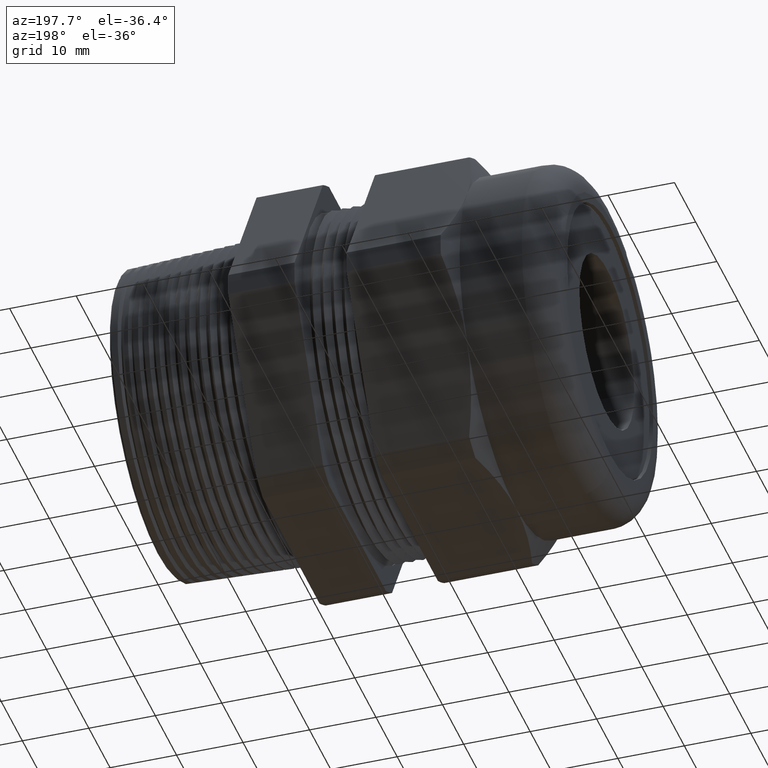
[diagram: clean part render]
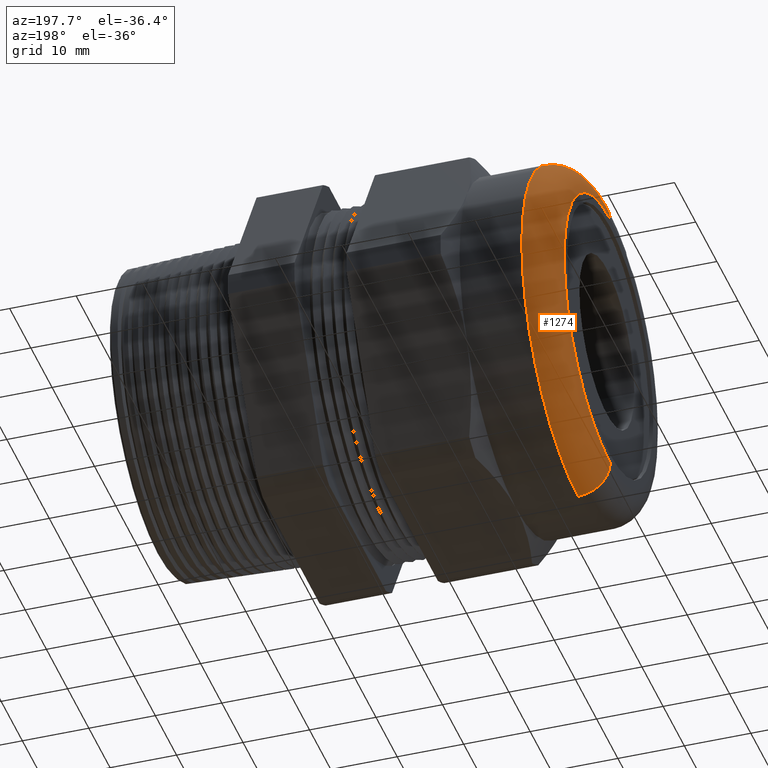
[diagram: same view with one face highlighted and labeled with its STEP entity id]
A machine part, auxiliary view. The second image highlights one B-rep face of the part: STEP entity #1274.
In plain terms, the highlighted toroidal blend (fillet) surface has major radius 21.7068 mm and minor (blend) radius 4.8362 mm.
Its self-contained STEP definition (entity closure, byte-faithful):
#1195 = VERTEX_POINT ( 'NONE', #3585 ) ;
#1196 = ORIENTED_EDGE ( 'NONE', *, *, #1197, .F. ) ;
#1197 = EDGE_CURVE ( 'NONE', #1198, #1195, #3584, .T. ) ;
#1198 = VERTEX_POINT ( 'NONE', #3579 ) ;
#1258 = ORIENTED_EDGE ( 'NONE', *, *, #1259, .F. ) ;
#1259 = EDGE_CURVE ( 'NONE', #1278, #1198, #3661, .T. ) ;
#1274 = ADVANCED_FACE ( 'NONE', ( #3694 ), #3692, .T. ) ;
#1275 = ORIENTED_EDGE ( 'NONE', *, *, #1276, .F. ) ;
#1276 = EDGE_CURVE ( 'NONE', #1277, #1278, #3688, .T. ) ;
#1277 = VERTEX_POINT ( 'NONE', #3683 ) ;
#1278 = VERTEX_POINT ( 'NONE', #3682 ) ;
#1279 = ORIENTED_EDGE ( 'NONE', *, *, #1280, .T. ) ;
#1280 = EDGE_CURVE ( 'NONE', #1277, #1195, #3681, .T. ) ;
#1303 = EDGE_LOOP ( 'NONE', ( #1275, #1279, #1196, #1258 ) ) ;
#3579 = CARTESIAN_POINT ( 'NONE',  ( -1.699599999999999600, 1.279755905108983600E-016, -1.044999999999999700 ) ) ;
#3580 = DIRECTION ( 'NONE',  ( 0.0000000000000000000, 0.0000000000000000000, -1.000000000000000000 ) ) ;
#3581 = DIRECTION ( 'NONE',  ( 1.000000000000000000, 0.0000000000000000000, 0.0000000000000000000 ) ) ;
#3582 = CARTESIAN_POINT ( 'NONE',  ( -1.699599999999999600, 0.0000000000000000000, 0.0000000000000000000 ) ) ;
#3583 = AXIS2_PLACEMENT_3D ( 'NONE', #3582, #3581, #3580 ) ;
#3584 = CIRCLE ( 'NONE', #3583, 1.044999999999999700 ) ;
#3585 = CARTESIAN_POINT ( 'NONE',  ( -1.699599999999999600, 0.0000000000000000000, 1.044999999999999700 ) ) ;
#3657 = DIRECTION ( 'NONE',  ( 0.0000000000000000000, 0.0000000000000000000, -1.000000000000000000 ) ) ;
#3658 = DIRECTION ( 'NONE',  ( 0.0000000000000000000, -1.000000000000000000, 0.0000000000000000000 ) ) ;
#3659 = CARTESIAN_POINT ( 'NONE',  ( -1.699599999999999600, 0.0000000000000000000, -0.8545999999999995800 ) ) ;
#3660 = AXIS2_PLACEMENT_3D ( 'NONE', #3659, #3658, #3657 ) ;
#3661 = CIRCLE ( 'NONE', #3660, 0.1904000000000001000 ) ;
#3681 = CIRCLE ( 'NONE', #3744, 0.1904000000000001000 ) ;
#3682 = CARTESIAN_POINT ( 'NONE',  ( -1.889999999999999700, 0.0000000000000000000, -0.8545999999999995800 ) ) ;
#3683 = CARTESIAN_POINT ( 'NONE',  ( -1.889999999999999700, 1.163169529830155800E-016, 0.8545999999999995800 ) ) ;
#3684 = DIRECTION ( 'NONE',  ( 0.0000000000000000000, 0.0000000000000000000, -1.000000000000000000 ) ) ;
#3685 = DIRECTION ( 'NONE',  ( -1.000000000000000000, 0.0000000000000000000, 0.0000000000000000000 ) ) ;
#3686 = CARTESIAN_POINT ( 'NONE',  ( -1.889999999999999700, 0.0000000000000000000, 0.0000000000000000000 ) ) ;
#3687 = AXIS2_PLACEMENT_3D ( 'NONE', #3686, #3685, #3684 ) ;
#3688 = CIRCLE ( 'NONE', #3687, 0.8545999999999995800 ) ;
#3689 = DIRECTION ( 'NONE',  ( 0.0000000000000000000, 0.0000000000000000000, -1.000000000000000000 ) ) ;
#3690 = DIRECTION ( 'NONE',  ( 1.000000000000000000, 0.0000000000000000000, 0.0000000000000000000 ) ) ;
#3691 = AXIS2_PLACEMENT_3D ( 'NONE', #3693, #3690, #3689 ) ;
#3692 = TOROIDAL_SURFACE ( 'NONE', #3691, 0.8545999999999995800, 0.1904000000000001500 ) ;
#3693 = CARTESIAN_POINT ( 'NONE',  ( -1.699599999999999600, 0.0000000000000000000, 0.0000000000000000000 ) ) ;
#3694 = FACE_OUTER_BOUND ( 'NONE', #1303, .T. ) ;
#3741 = DIRECTION ( 'NONE',  ( 0.0000000000000000000, 1.224646799147353500E-016, 1.000000000000000000 ) ) ;
#3742 = DIRECTION ( 'NONE',  ( 0.0000000000000000000, 1.000000000000000000, -1.224646799147353200E-016 ) ) ;
#3743 = CARTESIAN_POINT ( 'NONE',  ( -1.699599999999999600, 1.046583154551327500E-016, 0.8545999999999995800 ) ) ;
#3744 = AXIS2_PLACEMENT_3D ( 'NONE', #3743, #3742, #3741 ) ;